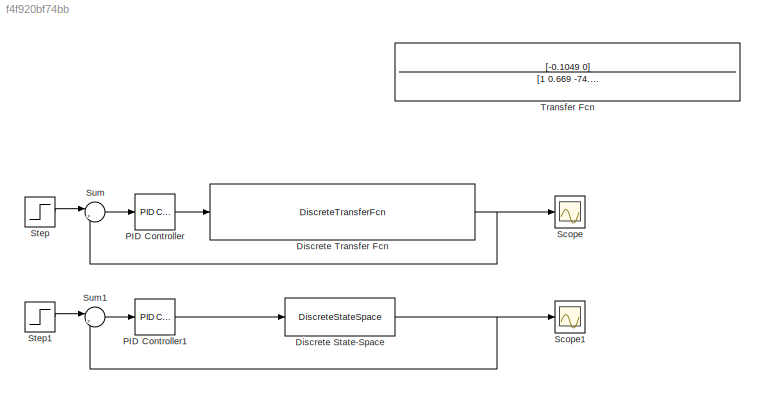
MODEL slx_f4f920bf74bb
KIND model
CONFIG AbsTol = auto
CONFIG EnableMultiTasking = off
CONFIG FixedStep = auto
CONFIG MaxStep = auto
CONFIG MinStep = auto
CONFIG RelTol = 1e-3
CONFIG SampleTimeConstraint = Unconstrained
CONFIG SolverName = VariableStepAuto
CONFIG StartTime = 0.0
CONFIG StopTime = 100
BLOCK [DiscreteStateSpace] Discrete State-Space
  A = [1 0.005084 -0.00216 -0.0004749; -0.005615 0.9971 0.09105 0.004759; 0.0005685 -0.08088 0.9887 -0.1414; 0.0001321 0.0002779 -0.0004778 -0.1509]
  B = [3.431e-9; 1.671e-7; -1.725e-7; -1.252e-7]
  C = [8234 -78.48 55.16 17.2]
  D = [0]
  SampleTime = -1
BLOCK [DiscreteTransferFcn] Discrete Transfer Fcn
  Denominator = [1 -2.993 2.978 -0.9854]
  InputPortMap = u0
  Numerator = [-0.000005586 -0.00000002727 -0.000005559]
BLOCK [Reference] PID Controller  REF=slpidlib/PID Controller
  LibrarySourceBlock = simulink/Continuous/PID Controller
  SourceBlock = slpidlib/PID Controller
  SourceType = PID 1dof
BLOCK [Reference] PID Controller1  REF=slpidlib/PID Controller
  LibrarySourceBlock = simulink/Continuous/PID Controller
  SourceBlock = slpidlib/PID Controller
  SourceType = PID 1dof
BLOCK [Scope] Scope
  Floating = off
  NumInputPorts = 1
  ScopeSpecificationString = Simulink.scopes.TimeScopeBlockCfg('CurrentConfiguration', extmgr.ConfigurationSet(extmgr.Configuration('Core','General UI',true),extmgr.Configuration('Core','Source UI',true),extmgr.Configuration('Sources','WiredSimulink',true),extmgr.Configuration('Visuals','Time Domain',true,'SerializedDisplays',{struct('MinYLimReal','-0.58132','MaxYLimReal','5.10926','YLabelReal','','MinYLimMag','0.00000','MaxY...<+1459ch>
BLOCK [Scope] Scope1
  Floating = off
  NumInputPorts = 1
  ScopeSpecificationString = Simulink.scopes.TimeScopeBlockCfg('CurrentConfiguration', extmgr.ConfigurationSet(extmgr.Configuration('Core','General UI',true),extmgr.Configuration('Core','Source UI',true),extmgr.Configuration('Sources','WiredSimulink',true,'DataLoggingVariableName','ScopeData1'),extmgr.Configuration('Visuals','Time Domain',true,'SerializedDisplays',{struct('MinYLimReal','-0.13906','MaxYLimReal','1.2515','YLabe...<+1537ch>
BLOCK [Step] Step
  SampleTime = 0.01
  Time = 6
BLOCK [Step] Step1
  SampleTime = 0.01
  Time = 6
BLOCK [Sum] Sum
  Inputs = |+-
BLOCK [Sum] Sum1
  Inputs = |+-
BLOCK [TransferFcn] Transfer Fcn
  Denominator = [1 0.669 -74.57 -0.3474]
  Numerator = [-0.1049 0]
NET Discrete State-Space:1 -> Scope1:1, Sum1:2
NET Discrete Transfer Fcn:1 -> Scope:1, Sum:2
LINE PID Controller1:1 -> Discrete State-Space:1
LINE PID Controller:1 -> Discrete Transfer Fcn:1
LINE Step1:1 -> Sum1:1
LINE Step:1 -> Sum:1
LINE Sum1:1 -> PID Controller1:1
LINE Sum:1 -> PID Controller:1
note: NET lines group one-source signal fan-out (src -> all destinations, sorted); 1:1 wires keep LINE
